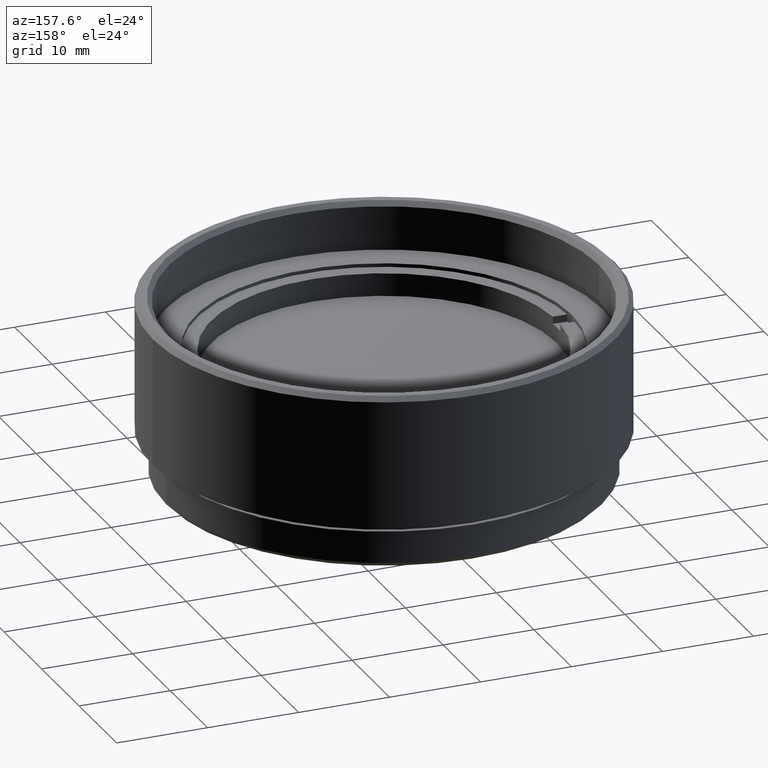
[diagram: clean part render]
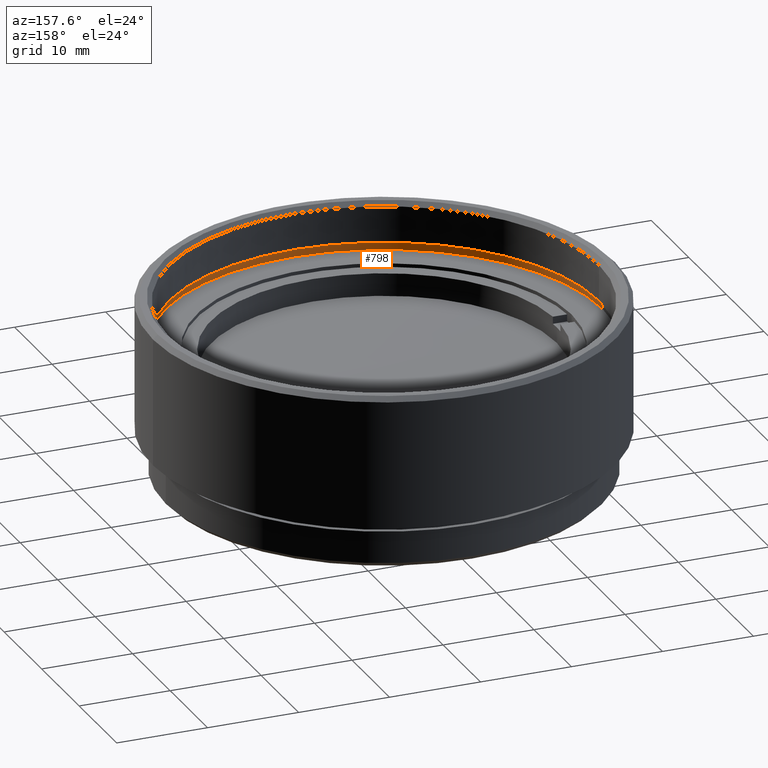
[diagram: same view with one face highlighted and labeled with its STEP entity id]
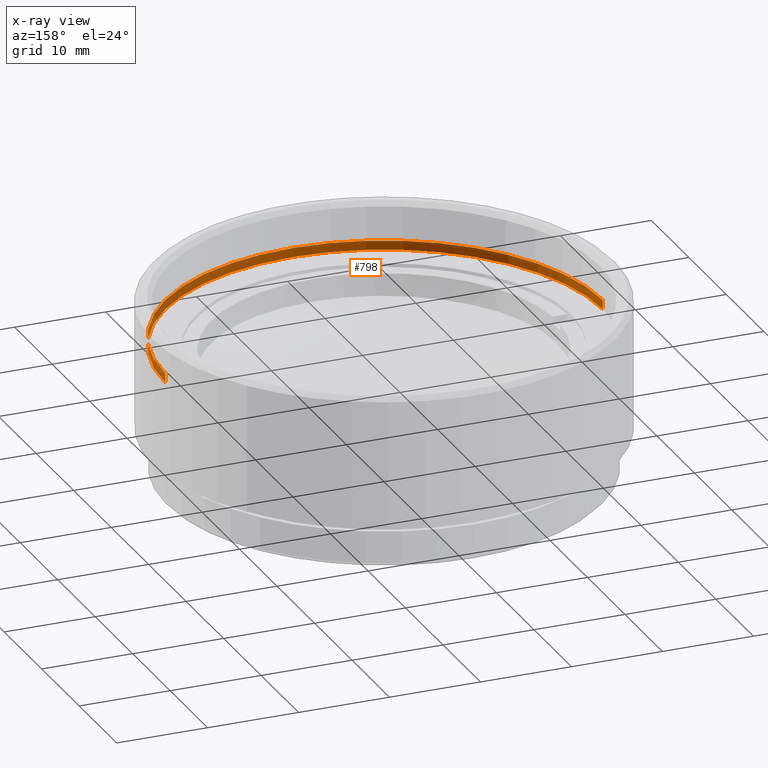
[diagram: x-ray of the same camera — body ghosted, the highlighted face saturated]
A machine part, auxiliary view. The second image highlights one B-rep face of the part: STEP entity #798.
The next image is the same camera in x-ray: the body ghosted, the highlighted face saturated — about 2% of this face is hidden behind the body in this view.
In plain terms, the highlighted cylindrical surface (partial cylindrical patch) has radius 24.05 mm, axis along (0, 0, -1).
Its self-contained STEP definition (entity closure, byte-faithful):
#49 = EDGE_CURVE ( 'NONE', #157, #366, #551, .T. ) ;
#83 = LINE ( 'NONE', #679, #747 ) ;
#91 = DIRECTION ( 'NONE',  ( 0.000000000000000000, 0.000000000000000000, -1.000000000000000000 ) ) ;
#157 = VERTEX_POINT ( 'NONE', #979 ) ;
#175 = CARTESIAN_POINT ( 'NONE',  ( 24.05000000000000071, 2.945275551949384573E-15, 15.00000000000000000 ) ) ;
#187 = VERTEX_POINT ( 'NONE', #175 ) ;
#192 = CARTESIAN_POINT ( 'NONE',  ( 24.05000000000000071, 2.945275551949384573E-15, 14.00000000000000000 ) ) ;
#274 = AXIS2_PLACEMENT_3D ( 'NONE', #857, #1152, #1442 ) ;
#309 = CIRCLE ( 'NONE', #1554, 24.05000000000000071 ) ;
#366 = VERTEX_POINT ( 'NONE', #192 ) ;
#551 = CIRCLE ( 'NONE', #791, 24.05000000000000071 ) ;
#554 = DIRECTION ( 'NONE',  ( 0.000000000000000000, 0.000000000000000000, -1.000000000000000000 ) ) ;
#569 = FACE_OUTER_BOUND ( 'NONE', #1371, .T. ) ;
#595 = CARTESIAN_POINT ( 'NONE',  ( -24.05000000000000071, 0.000000000000000000, 15.00000000000000000 ) ) ;
#679 = CARTESIAN_POINT ( 'NONE',  ( 24.05000000000000071, 2.945275551949384573E-15, 15.00000000000000000 ) ) ;
#747 = VECTOR ( 'NONE', #91, 1000.000000000000000 ) ;
#771 = VERTEX_POINT ( 'NONE', #595 ) ;
#775 = VECTOR ( 'NONE', #554, 1000.000000000000000 ) ;
#791 = AXIS2_PLACEMENT_3D ( 'NONE', #1465, #1594, #1750 ) ;
#798 = ADVANCED_FACE ( 'NONE', ( #569 ), #1299, .F. ) ;
#822 = LINE ( 'NONE', #1836, #775 ) ;
#857 = CARTESIAN_POINT ( 'NONE',  ( 0.000000000000000000, 0.000000000000000000, 15.00000000000000000 ) ) ;
#945 = CARTESIAN_POINT ( 'NONE',  ( 0.000000000000000000, 0.000000000000000000, 15.00000000000000000 ) ) ;
#979 = CARTESIAN_POINT ( 'NONE',  ( -24.05000000000000071, 0.000000000000000000, 14.00000000000000000 ) ) ;
#1048 = EDGE_CURVE ( 'NONE', #771, #187, #309, .T. ) ;
#1075 = EDGE_CURVE ( 'NONE', #187, #366, #83, .T. ) ;
#1152 = DIRECTION ( 'NONE',  ( 0.000000000000000000, 0.000000000000000000, -1.000000000000000000 ) ) ;
#1196 = EDGE_CURVE ( 'NONE', #771, #157, #822, .T. ) ;
#1215 = ORIENTED_EDGE ( 'NONE', *, *, #1048, .T. ) ;
#1271 = ORIENTED_EDGE ( 'NONE', *, *, #1196, .F. ) ;
#1299 = CYLINDRICAL_SURFACE ( 'NONE', #274, 24.05000000000000071 ) ;
#1371 = EDGE_LOOP ( 'NONE', ( #1215, #1763, #1745, #1271 ) ) ;
#1442 = DIRECTION ( 'NONE',  ( -1.000000000000000000, 0.000000000000000000, 0.000000000000000000 ) ) ;
#1465 = CARTESIAN_POINT ( 'NONE',  ( 0.000000000000000000, 0.000000000000000000, 14.00000000000000000 ) ) ;
#1538 = DIRECTION ( 'NONE',  ( 1.000000000000000000, 0.000000000000000000, 0.000000000000000000 ) ) ;
#1554 = AXIS2_PLACEMENT_3D ( 'NONE', #945, #1846, #1538 ) ;
#1594 = DIRECTION ( 'NONE',  ( 0.000000000000000000, 0.000000000000000000, 1.000000000000000000 ) ) ;
#1745 = ORIENTED_EDGE ( 'NONE', *, *, #49, .F. ) ;
#1750 = DIRECTION ( 'NONE',  ( 1.000000000000000000, 0.000000000000000000, 0.000000000000000000 ) ) ;
#1763 = ORIENTED_EDGE ( 'NONE', *, *, #1075, .T. ) ;
#1836 = CARTESIAN_POINT ( 'NONE',  ( -24.05000000000000071, 0.000000000000000000, 15.00000000000000000 ) ) ;
#1846 = DIRECTION ( 'NONE',  ( 0.000000000000000000, 0.000000000000000000, 1.000000000000000000 ) ) ;